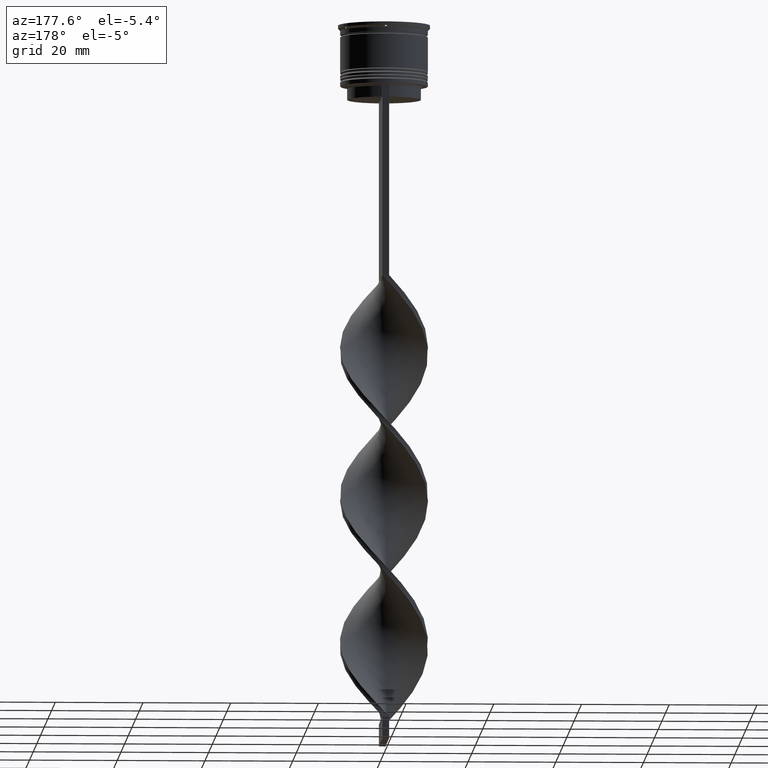
[diagram: clean part render]
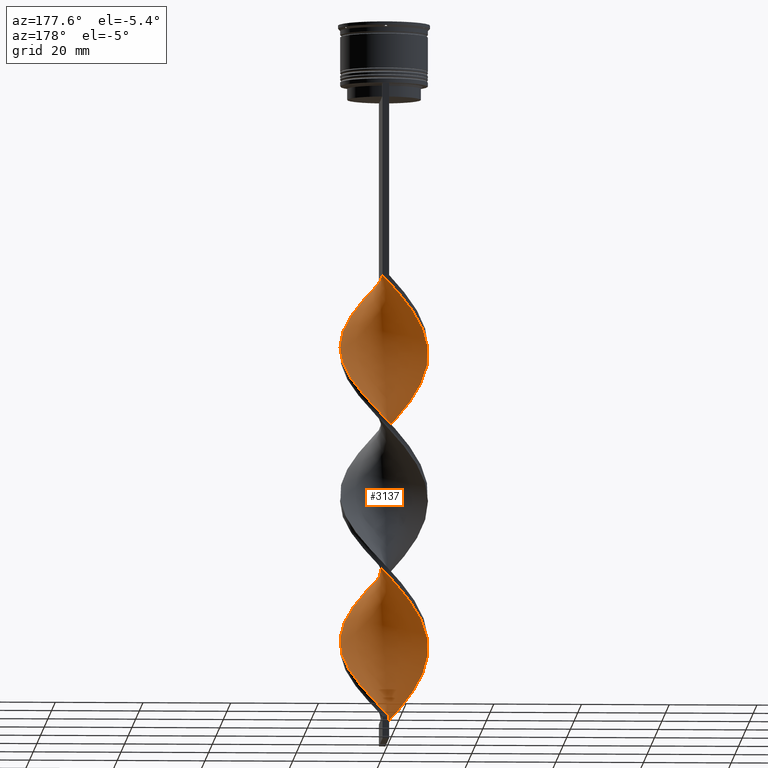
[diagram: same view with one face highlighted and labeled with its STEP entity id]
A machine part, auxiliary view. The second image highlights one B-rep face of the part: STEP entity #3137.
In plain terms, the highlighted face is a freeform B-spline surface patch.
Its self-contained STEP definition (entity closure, byte-faithful):
#8 = CARTESIAN_POINT ( 'NONE',  ( -8.578000064855064721, -5.300124413240419052, -81.56666666666664867 ) ) ;
#13 = CARTESIAN_POINT ( 'NONE',  ( 1.345506207627244155, 9.937409775451381932, -89.42222222222223138 ) ) ;
#24 = CARTESIAN_POINT ( 'NONE',  ( 7.933296209543087230, 6.133947444480531530, -116.3555555555555685 ) ) ;
#40 = CARTESIAN_POINT ( 'NONE',  ( 5.680638183180778178, 8.330891533339581656, -119.7222222222222143 ) ) ;
#49 = CARTESIAN_POINT ( 'NONE',  ( -7.691465658176951159, -6.520334342467823063, -115.2333333333333343 ) ) ;
#58 = CARTESIAN_POINT ( 'NONE',  ( -9.866822606231991699, 1.791176054202741952, -73.71111111111112280 ) ) ;
#62 = CARTESIAN_POINT ( 'NONE',  ( -0.3010423526567642116, 10.07882817644925666, -126.4555555555555628 ) ) ;
#77 = CARTESIAN_POINT ( 'NONE',  ( 7.691465658176943165, -6.520334342467822175, -101.7666666666666515 ) ) ;
#81 = CARTESIAN_POINT ( 'NONE',  ( 8.578000064855064721, 5.300124413240417276, -115.2333333333333343 ) ) ;
#94 = CARTESIAN_POINT ( 'NONE',  ( 9.866822606231989923, -1.791176054202747503, -107.3777777777777942 ) ) ;
#96 = CARTESIAN_POINT ( 'NONE',  ( 2.812727608727948247, -9.625542239224740726, -127.5777777777777828 ) ) ;
#116 = CARTESIAN_POINT ( 'NONE',  ( -10.02361530113348032, 0.2993932111503379012, -107.3777777777777942 ) ) ;
#134 = CARTESIAN_POINT ( 'NONE',  ( 6.167734941832655693, 7.976995022925434498, -83.81111111111111711 ) ) ;
#152 = CARTESIAN_POINT ( 'NONE',  ( -9.492508010833709875, 3.400837481082930491, -104.0111111111111200 ) ) ;
#167 = CARTESIAN_POINT ( 'NONE',  ( -1.801042352656767154, -9.921171823550741564, -90.54444444444445139 ) ) ;
#176 = CARTESIAN_POINT ( 'NONE',  ( 6.484615268705944402, -7.649331004530123934, -132.0666666666666629 ) ) ;
#191 = CARTESIAN_POINT ( 'NONE',  ( -5.680638183180776402, -8.330891533339583432, -86.05555555555557135 ) ) ;
#210 = CARTESIAN_POINT ( 'NONE',  ( 1.801042352656772927, 9.921171823550741564, -124.2111111111111370 ) ) ;
#221 = CARTESIAN_POINT ( 'NONE',  ( 9.742327908732750785, -2.376877556528111057, -138.8000000000000114 ) ) ;
#222 = LINE ( 'NONE', #591, #575 ) ;
#230 = CARTESIAN_POINT ( 'NONE',  ( -10.02361530113347143, -0.2993932111503279092, -143.2888888888889198 ) ) ;
#243 = CARTESIAN_POINT ( 'NONE',  ( 3.382207337526045965, -9.440507058732858781, -96.15555555555556566 ) ) ;
#251 = CARTESIAN_POINT ( 'NONE',  ( 9.866822606231998805, 1.791176054202738843, -75.95555555555554861 ) ) ;
#258 = CARTESIAN_POINT ( 'NONE',  ( -0.7500000000000014433, -9.999999999999998224, -159.0000000000000000 ) ) ;
#266 = CARTESIAN_POINT ( 'NONE',  ( 5.271089777143518340, -8.531008882968828644, -98.40000000000001990 ) ) ;
#272 = CARTESIAN_POINT ( 'NONE',  ( -9.278802417170330941, -3.803462330970838856, -111.8666666666666742 ) ) ;
#280 = CARTESIAN_POINT ( 'NONE',  ( 9.866822606231998805, 1.791176054202738843, -143.2888888888889198 ) ) ;
#284 = CARTESIAN_POINT ( 'NONE',  ( -4.374444612454386316, 9.085022743012224566, -63.61111111111111427 ) ) ;
#289 = CARTESIAN_POINT ( 'NONE',  ( 4.752525523989954870, -8.830402094119163436, -62.48888888888889426 ) ) ;
#291 = CARTESIAN_POINT ( 'NONE',  ( -3.382207337526049518, 9.440507058732857004, -129.8222222222222229 ) ) ;
#303 = CARTESIAN_POINT ( 'NONE',  ( -1.345506207627238604, 9.937409775451374827, -60.24444444444444713 ) ) ;
#318 = VERTEX_POINT ( 'NONE', #721 ) ;
#328 = CARTESIAN_POINT ( 'NONE',  ( -9.035254037844387298, -4.350480947161667444, -147.7777777777777715 ) ) ;
#333 = CARTESIAN_POINT ( 'NONE',  ( 6.484615268705944402, -7.649331004530123934, -64.73333333333333428 ) ) ;
#344 = CARTESIAN_POINT ( 'NONE',  ( 9.278802417170323835, -3.803462330970840188, -105.1333333333333400 ) ) ;
#350 = CARTESIAN_POINT ( 'NONE',  ( -0.3010423526567735375, -10.07882817644926376, -124.2111111111111370 ) ) ;
#357 = CARTESIAN_POINT ( 'NONE',  ( -1.345506207627238382, 9.937409775451374827, -60.24444444444444713 ) ) ;
#360 = CARTESIAN_POINT ( 'NONE',  ( -5.271089777143520116, 8.531008882968830420, -132.0666666666666629 ) ) ;
#379 = CARTESIAN_POINT ( 'NONE',  ( -6.167734941832649476, 7.976995022925432721, -65.85555555555555429 ) ) ;
#384 = CARTESIAN_POINT ( 'NONE',  ( 0.7500000000000001110, 9.999999999999998224, -125.3333333333333570 ) ) ;
#397 = CARTESIAN_POINT ( 'NONE',  ( 9.278802417170323835, -3.803462330970840632, -105.1333333333333400 ) ) ;
#401 = CARTESIAN_POINT ( 'NONE',  ( 10.05508279563516005, -0.7541312096726393577, -108.5000000000000000 ) ) ;
#418 = CARTESIAN_POINT ( 'NONE',  ( -9.678562416828828674, -2.828220898732835220, -110.7444444444444542 ) ) ;
#439 = CARTESIAN_POINT ( 'NONE',  ( -8.285254037844394404, -5.649519052838325450, -114.1111111111111285 ) ) ;
#455 = CARTESIAN_POINT ( 'NONE',  ( -4.752525523989951317, 8.830402094119165213, -96.15555555555556566 ) ) ;
#472 = CARTESIAN_POINT ( 'NONE',  ( -6.929600300004805646, -7.248664682696627892, -116.3555555555555685 ) ) ;
#476 = CARTESIAN_POINT ( 'NONE',  ( 10.05508279563516716, 0.7541312096726368042, -142.1666666666666856 ) ) ;
#486 = CARTESIAN_POINT ( 'NONE',  ( -8.285254037844383745, 5.649519052838329891, -69.22222222222222854 ) ) ;
#496 = CARTESIAN_POINT ( 'NONE',  ( -9.992147806631789919, 1.352917631973302282, -106.2555555555555742 ) ) ;
#524 = CARTESIAN_POINT ( 'NONE',  ( 0.3010423526567678754, 10.07882817644926376, -157.8777777777777942 ) ) ;
#532 = CARTESIAN_POINT ( 'NONE',  ( 9.992147806631784590, 1.352917631973288071, -110.7444444444444542 ) ) ;
#540 = CARTESIAN_POINT ( 'NONE',  ( 2.389970062597715827, 9.795991374453498324, -155.6333333333333258 ) ) ;
#545 = CARTESIAN_POINT ( 'NONE',  ( -9.866822606231991699, 1.791176054202741730, -73.71111111111112280 ) ) ;
#551 = CARTESIAN_POINT ( 'NONE',  ( -9.035254037844390851, 4.350480947161678102, -102.8888888888888857 ) ) ;
#553 = CARTESIAN_POINT ( 'NONE',  ( -9.492508010833709875, -3.400837481082919389, -146.6555555555555657 ) ) ;
#571 = CARTESIAN_POINT ( 'NONE',  ( -8.879042417511827878, 4.778703763208837607, -70.34444444444443434 ) ) ;
#575 = VECTOR ( 'NONE', #3627, 1000.000000000000000 ) ;
#580 = CARTESIAN_POINT ( 'NONE',  ( 9.035254037844389075, 4.350480947161663003, -114.1111111111111285 ) ) ;
#587 = ORIENTED_EDGE ( 'NONE', *, *, #828, .F. ) ;
#591 = CARTESIAN_POINT ( 'NONE',  ( 0.7500000000000001110, -10.00000000000000533, -58.00000000000000000 ) ) ;
#597 = CARTESIAN_POINT ( 'NONE',  ( 10.02361530113347854, -0.2993932111503322391, -73.71111111111112280 ) ) ;
#609 = CARTESIAN_POINT ( 'NONE',  ( -4.752525523989953982, -8.830402094119154555, -87.17777777777779136 ) ) ;
#615 = CARTESIAN_POINT ( 'NONE',  ( -9.492508010833711651, 3.400837481082930491, -104.0111111111111057 ) ) ;
#628 = CARTESIAN_POINT ( 'NONE',  ( 9.492508010833709875, 3.400837481082915836, -112.9888888888888943 ) ) ;
#636 = CARTESIAN_POINT ( 'NONE',  ( -3.824412864799130674, 9.329912654898736335, -95.03333333333331723 ) ) ;
#648 = CARTESIAN_POINT ( 'NONE',  ( 7.288592354231113291, 6.967770475720644896, -117.4777777777777885 ) ) ;
#654 = CARTESIAN_POINT ( 'NONE',  ( 0.7500000000000001110, -10.00000000000000533, -125.3333333333333570 ) ) ;
#666 = CARTESIAN_POINT ( 'NONE',  ( -2.812727608727951356, -9.625542239224735397, -156.7555555555555600 ) ) ;
#678 = CARTESIAN_POINT ( 'NONE',  ( 4.374444612454384540, -9.085022743012224566, -97.27777777777779988 ) ) ;
#681 = CARTESIAN_POINT ( 'NONE',  ( 5.680638183180777290, -8.330891533339590538, -63.61111111111111427 ) ) ;
#699 = CARTESIAN_POINT ( 'NONE',  ( -4.374444612454386316, 9.085022743012224566, -63.61111111111112137 ) ) ;
#704 = CARTESIAN_POINT ( 'NONE',  ( 6.484615268705942626, 7.649331004530116829, -118.6000000000000085 ) ) ;
#720 = CARTESIAN_POINT ( 'NONE',  ( -9.742327908732750785, 2.376877556528111946, -105.1333333333333400 ) ) ;
#721 = CARTESIAN_POINT ( 'NONE',  ( 0.7500000000000002220, 9.999999999999998224, -58.00000000000000000 ) ) ;
#736 = CARTESIAN_POINT ( 'NONE',  ( 0.7500000000000001110, -10.00000000000000533, -125.3333333333333570 ) ) ;
#757 = CARTESIAN_POINT ( 'NONE',  ( -3.824412864799130674, 9.329912654898738111, -95.03333333333331723 ) ) ;
#763 = CARTESIAN_POINT ( 'NONE',  ( 7.691465658176951159, 6.520334342467823951, -148.8999999999999773 ) ) ;
#777 = CARTESIAN_POINT ( 'NONE',  ( -2.389970062597717604, -9.795991374453498324, -121.9666666666666544 ) ) ;
#781 = CARTESIAN_POINT ( 'NONE',  ( 5.271089777143525446, 8.531008882968833973, -152.2666666666666799 ) ) ;
#784 = VERTEX_POINT ( 'NONE', #2822 ) ;
#790 = CARTESIAN_POINT ( 'NONE',  ( 0.3010423526567599928, -10.07882817644925844, -92.78888888888889142 ) ) ;
#796 = CARTESIAN_POINT ( 'NONE',  ( -2.812727608727946027, 9.625542239224740726, -93.91111111111111143 ) ) ;
#800 = CARTESIAN_POINT ( 'NONE',  ( 6.484615268705944402, -7.649331004530123934, -132.0666666666666629 ) ) ;
#824 = CARTESIAN_POINT ( 'NONE',  ( -2.812727608727951356, -9.625542239224735397, -89.42222222222223138 ) ) ;
#828 = EDGE_CURVE ( 'NONE', #318, #1967, #1308, .T. ) ;
#840 = CARTESIAN_POINT ( 'NONE',  ( -0.7499999999999988898, 10.00000000000000533, -159.0000000000000000 ) ) ;
#846 = CARTESIAN_POINT ( 'NONE',  ( -0.7500000000000013323, -9.999999999999998224, -91.66666666666667140 ) ) ;
#852 = CARTESIAN_POINT ( 'NONE',  ( 3.382207337526056179, 9.440507058732862333, -87.17777777777779136 ) ) ;
#854 = CARTESIAN_POINT ( 'NONE',  ( 5.680638183180778178, 8.330891533339583432, -119.7222222222222143 ) ) ;
#868 = CARTESIAN_POINT ( 'NONE',  ( -9.992147806631782814, -1.352917631973294510, -77.07777777777778283 ) ) ;
#874 = CARTESIAN_POINT ( 'NONE',  ( -10.05508279563516716, -0.7541312096726355829, -108.5000000000000000 ) ) ;
#876 = CARTESIAN_POINT ( 'NONE',  ( -5.271089777143520116, 8.531008882968830420, -132.0666666666666629 ) ) ;
#899 = CARTESIAN_POINT ( 'NONE',  ( 2.389970062597715827, 9.795991374453498324, -88.29999999999998295 ) ) ;
#908 = CARTESIAN_POINT ( 'NONE',  ( 8.879042417511834984, 4.778703763208838495, -146.6555555555555657 ) ) ;
#912 = CARTESIAN_POINT ( 'NONE',  ( -9.742327908732745456, -2.376877556528107949, -78.20000000000000284 ) ) ;
#919 = CARTESIAN_POINT ( 'NONE',  ( -5.680638183180775513, 8.330891533339592314, -97.27777777777779988 ) ) ;
#929 = CARTESIAN_POINT ( 'NONE',  ( 10.02361530113347143, 0.2993932111503245785, -109.6222222222222342 ) ) ;
#935 = CARTESIAN_POINT ( 'NONE',  ( -0.7499999999999988898, 10.00000000000000533, -91.66666666666667140 ) ) ;
#947 = CARTESIAN_POINT ( 'NONE',  ( -3.824412864799130674, -9.329912654898729230, -155.6333333333333258 ) ) ;
#954 = CARTESIAN_POINT ( 'NONE',  ( -6.929600300004805646, -7.248664682696627892, -116.3555555555555685 ) ) ;
#966 = CARTESIAN_POINT ( 'NONE',  ( 0.7500000000000001110, -10.00000000000000533, -58.00000000000000000 ) ) ;
#979 = CARTESIAN_POINT ( 'NONE',  ( -7.288592354231108850, -6.967770475720649337, -83.81111111111111711 ) ) ;
#983 = CARTESIAN_POINT ( 'NONE',  ( -7.933296209543087230, -6.133947444480532418, -150.0222222222222115 ) ) ;
#998 = CARTESIAN_POINT ( 'NONE',  ( 8.578000064855068274, -5.300124413240424381, -68.10000000000002274 ) ) ;
#1016 = CARTESIAN_POINT ( 'NONE',  ( -4.752525523989953982, -8.830402094119154555, -87.17777777777779136 ) ) ;
#1022 = CARTESIAN_POINT ( 'NONE',  ( 7.933296209543089006, -6.133947444480539524, -134.3111111111111313 ) ) ;
#1037 = CARTESIAN_POINT ( 'NONE',  ( 9.742327908732750785, -2.376877556528111057, -138.8000000000000114 ) ) ;
#1050 = CARTESIAN_POINT ( 'NONE',  ( 2.389970062597715827, 9.795991374453498324, -88.29999999999998295 ) ) ;
#1054 = CARTESIAN_POINT ( 'NONE',  ( 9.492508010833715204, -3.400837481082924718, -137.6777777777777487 ) ) ;
#1071 = CARTESIAN_POINT ( 'NONE',  ( -0.7499999999999988898, 10.00000000000000533, -159.0000000000000000 ) ) ;
#1073 = CARTESIAN_POINT ( 'NONE',  ( -7.691465658176951159, -6.520334342467823063, -115.2333333333333343 ) ) ;
#1078 = CARTESIAN_POINT ( 'NONE',  ( 8.879042417511834984, 4.778703763208838495, -146.6555555555555657 ) ) ;
#1093 = CARTESIAN_POINT ( 'NONE',  ( 10.02361530113347854, -0.2993932111503322391, -73.71111111111112280 ) ) ;
#1126 = CARTESIAN_POINT ( 'NONE',  ( -5.680638183180776402, -8.330891533339583432, -153.3888888888889142 ) ) ;
#1140 = CARTESIAN_POINT ( 'NONE',  ( 6.929600300004804758, 7.248664682696628780, -150.0222222222222115 ) ) ;
#1143 = CARTESIAN_POINT ( 'NONE',  ( -5.271089777143520116, 8.531008882968830420, -64.73333333333333428 ) ) ;
#1151 = CARTESIAN_POINT ( 'NONE',  ( -4.752525523989953982, -8.830402094119154555, -154.5111111111111200 ) ) ;
#1169 = CARTESIAN_POINT ( 'NONE',  ( -10.02361530113348032, 0.2993932111503379012, -107.3777777777777942 ) ) ;
#1171 = CARTESIAN_POINT ( 'NONE',  ( -9.678562416828818016, 2.828220898732843214, -139.9222222222222172 ) ) ;
#1187 = CARTESIAN_POINT ( 'NONE',  ( 7.691465658176951159, 6.520334342467823951, -81.56666666666666288 ) ) ;
#1189 = CARTESIAN_POINT ( 'NONE',  ( -9.992147806631782814, -1.352917631973294288, -144.4111111111111256 ) ) ;
#1205 = CARTESIAN_POINT ( 'NONE',  ( -3.382207337526049962, 9.440507058732857004, -62.48888888888889426 ) ) ;
#1212 = CARTESIAN_POINT ( 'NONE',  ( -7.288592354231109738, 6.967770475720659107, -99.52222222222223991 ) ) ;
#1213 = CARTESIAN_POINT ( 'NONE',  ( -0.3010423526567641006, 10.07882817644925666, -126.4555555555555770 ) ) ;
#1226 = CARTESIAN_POINT ( 'NONE',  ( 8.285254037844381969, -5.649519052838332556, -102.8888888888888857 ) ) ;
#1241 = CARTESIAN_POINT ( 'NONE',  ( -6.484615268705941737, -7.649331004530116829, -152.2666666666666799 ) ) ;
#1248 = CARTESIAN_POINT ( 'NONE',  ( 2.812727608727948247, -9.625542239224740726, -60.24444444444444713 ) ) ;
#1260 = CARTESIAN_POINT ( 'NONE',  ( -2.389970062597713163, 9.795991374453491218, -128.6999999999999886 ) ) ;
#1277 = CARTESIAN_POINT ( 'NONE',  ( -10.05508279563516005, 0.7541312096726382475, -74.83333333333332860 ) ) ;
#1281 = CARTESIAN_POINT ( 'NONE',  ( -3.382207337526049962, 9.440507058732857004, -129.8222222222222229 ) ) ;
#1293 = CARTESIAN_POINT ( 'NONE',  ( -2.812727608727951356, -9.625542239224735397, -89.42222222222223138 ) ) ;
#1296 = CARTESIAN_POINT ( 'NONE',  ( 8.879042417511824326, -4.778703763208842936, -104.0111111111111200 ) ) ;
#1308 =( BOUNDED_CURVE ( )  B_SPLINE_CURVE ( 2, ( #1383, #2515, #357, #2615, #2892, #699, #3123, #379, #3696, #2501, #486, #2207, #1575, #2786, #58, #1277, #1707, #1918, #2591, #2485, #1986, #2916, #2298, #979, #2190, #191, #1016, #3805, #1293, #167, #3505, #790, #3396, #1897, #1407, #678, #3104, #1600, #2807, #77, #3710, #3417, #397, #1617, #94, #1310, #2278, #532, #3889, #3230, #580, #3550, #3253, #2363, #3843, #854, #1494, #1751, #2657, #210, #3930, #1213, #3908, #3591, #291, #3570, #876, #2425, #2684, #3021, #1512, #1771, #2113, #1171, #3317, #2383, #230, #1189, #1819, #553, #2937, #2981, #2703, #1449, #2404, #1126, #1151, #2722, #1799, #3614, #3004 ),
 .UNSPECIFIED., .F., .T. ) 
 B_SPLINE_CURVE_WITH_KNOTS ( ( 3, 2, 2, 2, 2, 2, 2, 2, 2, 2, 2, 2, 2, 2, 2, 2, 2, 2, 2, 2, 2, 2, 2, 2, 2, 2, 2, 2, 2, 2, 2, 2, 2, 2, 2, 2, 2, 2, 2, 2, 2, 2, 2, 2, 2, 3 ),
 ( 0.000000000000000000, 0.01666666666666666644, 0.03333333333333333287, 0.05000000000000000971, 0.06666666666666666574, 0.08333333333333332871, 0.1000000000000000194, 0.1166666666666666546, 0.1333333333333333315, 0.1499999999999999944, 0.1666666666666666574, 0.1833333333333333204, 0.2000000000000000389, 0.2166666666666666741, 0.2333333333333333093, 0.2500000000000000000, 0.2666666666666666630, 0.2833333333333333259, 0.2999999999999999889, 0.3166666666666666519, 0.3333333333333333148, 0.3499999999999999223, 0.3666666666666666408, 0.3833333333333333592, 0.4000000000000000777, 0.4166666666666666852, 0.4333333333333333481, 0.4500000000000000111, 0.4666666666666666186, 0.4833333333333333370, 0.5000000000000000000, 0.5166666666666667185, 0.5333333333333333259, 0.5500000000000000444, 0.5666666666666666519, 0.5833333333333333703, 0.5999999999999999778, 0.6166666666666666963, 0.6333333333333333037, 0.6500000000000000222, 0.6666666666666666297, 0.6833333333333332371, 0.6999999999999998446, 0.7166666666666666741, 0.7333333333333332815, 0.7500000000000000000 ),
 .UNSPECIFIED. ) 
 CURVE ( )  GEOMETRIC_REPRESENTATION_ITEM ( )  RATIONAL_B_SPLINE_CURVE ( ( 1.000000000000000000, 0.9945218953682732899, 1.000000000000000000, 0.9945218953682732899, 1.000000000000000000, 0.9945218953682732899, 1.000000000000000000, 0.9945218953682732899, 1.000000000000000000, 0.9945218953682732899, 1.000000000000000000, 0.9945218953682732899, 1.000000000000000000, 0.9945218953682732899, 1.000000000000000000, 0.9945218953682732899, 1.000000000000000000, 0.9945218953682732899, 1.000000000000000000, 0.9945218953682732899, 1.000000000000000000, 0.9945218953682732899, 1.000000000000000000, 0.9945218953682732899, 1.000000000000000000, 0.9945218953682732899, 1.000000000000000000, 0.9945218953682732899, 1.000000000000000000, 0.9945218953682732899, 1.000000000000000000, 0.9945218953682732899, 1.000000000000000000, 0.9945218953682732899, 1.000000000000000000, 0.9945218953682732899, 1.000000000000000000, 0.9945218953682732899, 1.000000000000000000, 0.9945218953682732899, 1.000000000000000000, 0.9945218953682732899, 1.000000000000000000, 0.9945218953682732899, 1.000000000000000000, 0.9945218953682732899, 1.000000000000000000, 0.9945218953682732899, 1.000000000000000000, 0.9945218953682732899, 1.000000000000000000, 0.9945218953682732899, 1.000000000000000000, 0.9945218953682732899, 1.000000000000000000, 0.9945218953682732899, 1.000000000000000000, 0.9945218953682732899, 1.000000000000000000, 0.9945218953682732899, 1.000000000000000000, 0.9945218953682732899, 1.000000000000000000, 0.9945218953682732899, 1.000000000000000000, 0.9945218953682732899, 1.000000000000000000, 0.9945218953682732899, 1.000000000000000000, 0.9945218953682732899, 1.000000000000000000, 0.9945218953682732899, 1.000000000000000000, 0.9945218953682732899, 1.000000000000000000, 0.9945218953682732899, 1.000000000000000000, 0.9945218953682732899, 1.000000000000000000, 0.9945218953682732899, 1.000000000000000000, 0.9945218953682732899, 1.000000000000000000, 0.9945218953682732899, 1.000000000000000000, 0.9945218953682732899, 1.000000000000000000, 0.9945218953682732899, 1.000000000000000000, 0.9945218953682732899, 1.000000000000000000 ) ) 
 REPRESENTATION_ITEM ( '' )  );
#1310 = CARTESIAN_POINT ( 'NONE',  ( 10.05508279563516005, -0.7541312096726393577, -108.5000000000000000 ) ) ;
#1315 = CARTESIAN_POINT ( 'NONE',  ( 5.680638183180777290, -8.330891533339590538, -130.9444444444444287 ) ) ;
#1334 = CARTESIAN_POINT ( 'NONE',  ( 7.691465658176951159, 6.520334342467823951, -81.56666666666664867 ) ) ;
#1351 = CARTESIAN_POINT ( 'NONE',  ( 9.866822606231998805, 1.791176054202738843, -75.95555555555554861 ) ) ;
#1367 = CARTESIAN_POINT ( 'NONE',  ( -10.05508279563516716, -0.7541312096726356939, -108.5000000000000000 ) ) ;
#1383 = CARTESIAN_POINT ( 'NONE',  ( 0.7500000000000002220, 9.999999999999998224, -58.00000000000000000 ) ) ;
#1393 =( BOUNDED_CURVE ( )  B_SPLINE_CURVE ( 2, ( #3315, #1769, #1248, #1534, #289, #3568, #333, #2129, #3649, #1833, #2381, #3589, #2742, #2979, #597, #1817, #251, #3929, #1797, #3632, #1472, #1187, #2402, #3349, #2701, #3331, #852, #899, #13, #3293, #935, #1511, #2146, #636, #2111, #919, #2424, #1212, #1856, #3271, #551, #615, #2682, #3888, #1169, #874, #2087, #3002, #272, #2456, #2775, #49, #954, #3669, #2165, #1875, #3076, #3373, #1569, #350, #654, #3515, #2013, #2308, #2949, #2291, #800, #2645, #1399, #1743, #3834, #1054, #221, #2606, #3856, #476, #1663, #3218, #2868, #1078, #1980, #763, #1140, #3498, #781, #3183, #1696, #1997, #2579, #524, #3815 ),
 .UNSPECIFIED., .F., .T. ) 
 B_SPLINE_CURVE_WITH_KNOTS ( ( 3, 2, 2, 2, 2, 2, 2, 2, 2, 2, 2, 2, 2, 2, 2, 2, 2, 2, 2, 2, 2, 2, 2, 2, 2, 2, 2, 2, 2, 2, 2, 2, 2, 2, 2, 2, 2, 2, 2, 2, 2, 2, 2, 2, 2, 3 ),
 ( 0.000000000000000000, 0.01666666666666666644, 0.03333333333333333287, 0.05000000000000000971, 0.06666666666666666574, 0.08333333333333332871, 0.1000000000000000194, 0.1166666666666666546, 0.1333333333333333315, 0.1499999999999999944, 0.1666666666666666574, 0.1833333333333333204, 0.2000000000000000389, 0.2166666666666666741, 0.2333333333333333093, 0.2500000000000000000, 0.2666666666666666630, 0.2833333333333333259, 0.2999999999999999889, 0.3166666666666666519, 0.3333333333333333148, 0.3499999999999999223, 0.3666666666666666408, 0.3833333333333333592, 0.4000000000000000777, 0.4166666666666666852, 0.4333333333333333481, 0.4500000000000000111, 0.4666666666666666186, 0.4833333333333333370, 0.5000000000000000000, 0.5166666666666667185, 0.5333333333333333259, 0.5500000000000000444, 0.5666666666666666519, 0.5833333333333333703, 0.5999999999999999778, 0.6166666666666666963, 0.6333333333333333037, 0.6500000000000000222, 0.6666666666666666297, 0.6833333333333332371, 0.6999999999999998446, 0.7166666666666666741, 0.7333333333333332815, 0.7500000000000000000 ),
 .UNSPECIFIED. ) 
 CURVE ( )  GEOMETRIC_REPRESENTATION_ITEM ( )  RATIONAL_B_SPLINE_CURVE ( ( 1.000000000000000000, 0.9945218953682732899, 1.000000000000000000, 0.9945218953682732899, 1.000000000000000000, 0.9945218953682732899, 1.000000000000000000, 0.9945218953682732899, 1.000000000000000000, 0.9945218953682732899, 1.000000000000000000, 0.9945218953682732899, 1.000000000000000000, 0.9945218953682732899, 1.000000000000000000, 0.9945218953682732899, 1.000000000000000000, 0.9945218953682732899, 1.000000000000000000, 0.9945218953682732899, 1.000000000000000000, 0.9945218953682732899, 1.000000000000000000, 0.9945218953682732899, 1.000000000000000000, 0.9945218953682732899, 1.000000000000000000, 0.9945218953682732899, 1.000000000000000000, 0.9945218953682732899, 1.000000000000000000, 0.9945218953682732899, 1.000000000000000000, 0.9945218953682732899, 1.000000000000000000, 0.9945218953682732899, 1.000000000000000000, 0.9945218953682732899, 1.000000000000000000, 0.9945218953682732899, 1.000000000000000000, 0.9945218953682732899, 1.000000000000000000, 0.9945218953682732899, 1.000000000000000000, 0.9945218953682732899, 1.000000000000000000, 0.9945218953682732899, 1.000000000000000000, 0.9945218953682732899, 1.000000000000000000, 0.9945218953682732899, 1.000000000000000000, 0.9945218953682732899, 1.000000000000000000, 0.9945218953682732899, 1.000000000000000000, 0.9945218953682732899, 1.000000000000000000, 0.9945218953682732899, 1.000000000000000000, 0.9945218953682732899, 1.000000000000000000, 0.9945218953682732899, 1.000000000000000000, 0.9945218953682732899, 1.000000000000000000, 0.9945218953682732899, 1.000000000000000000, 0.9945218953682732899, 1.000000000000000000, 0.9945218953682732899, 1.000000000000000000, 0.9945218953682732899, 1.000000000000000000, 0.9945218953682732899, 1.000000000000000000, 0.9945218953682732899, 1.000000000000000000, 0.9945218953682732899, 1.000000000000000000, 0.9945218953682732899, 1.000000000000000000, 0.9945218953682732899, 1.000000000000000000, 0.9945218953682732899, 1.000000000000000000, 0.9945218953682732899, 1.000000000000000000, 0.9945218953682732899, 1.000000000000000000 ) ) 
 REPRESENTATION_ITEM ( '' )  );
#1394 = CARTESIAN_POINT ( 'NONE',  ( -3.382207337526060620, -9.440507058732860557, -120.8444444444444485 ) ) ;
#1399 = CARTESIAN_POINT ( 'NONE',  ( 7.933296209543089006, -6.133947444480539524, -134.3111111111111313 ) ) ;
#1407 = CARTESIAN_POINT ( 'NONE',  ( 3.382207337526045965, -9.440507058732858781, -96.15555555555556566 ) ) ;
#1415 = CARTESIAN_POINT ( 'NONE',  ( 9.278802417170330941, 3.803462330970840632, -145.5333333333333599 ) ) ;
#1441 = CARTESIAN_POINT ( 'NONE',  ( -10.02361530113347143, -0.2993932111503280202, -75.95555555555554861 ) ) ;
#1449 = CARTESIAN_POINT ( 'NONE',  ( -7.288592354231108850, -6.967770475720649337, -151.1444444444444457 ) ) ;
#1465 = CARTESIAN_POINT ( 'NONE',  ( 4.374444612454384540, -9.085022743012224566, -97.27777777777778567 ) ) ;
#1472 = CARTESIAN_POINT ( 'NONE',  ( 8.285254037844390851, 5.649519052838329891, -80.44444444444445708 ) ) ;
#1486 = CARTESIAN_POINT ( 'NONE',  ( -7.288592354231108850, -6.967770475720650225, -83.81111111111111711 ) ) ;
#1494 = CARTESIAN_POINT ( 'NONE',  ( 4.752525523989959311, 8.830402094119152778, -120.8444444444444485 ) ) ;
#1505 = CARTESIAN_POINT ( 'NONE',  ( -6.929600300004796765, 7.248664682696627892, -66.97777777777777430 ) ) ;
#1511 = CARTESIAN_POINT ( 'NONE',  ( -1.801042352656761381, 9.921171823550750446, -92.78888888888889142 ) ) ;
#1512 = CARTESIAN_POINT ( 'NONE',  ( -8.285254037844383745, 5.649519052838329891, -136.5555555555555713 ) ) ;
#1534 = CARTESIAN_POINT ( 'NONE',  ( 3.824412864799132006, -9.329912654898734559, -61.36666666666666003 ) ) ;
#1539 = CARTESIAN_POINT ( 'NONE',  ( -0.7500000000000014433, -9.999999999999998224, -159.0000000000000000 ) ) ;
#1547 = CARTESIAN_POINT ( 'NONE',  ( -8.578000064855064721, -5.300124413240419052, -148.8999999999999488 ) ) ;
#1562 = CARTESIAN_POINT ( 'NONE',  ( 6.484615268705944402, -7.649331004530123934, -64.73333333333333428 ) ) ;
#1569 = CARTESIAN_POINT ( 'NONE',  ( -1.345506207627245487, -9.937409775451381932, -123.0888888888888886 ) ) ;
#1575 = CARTESIAN_POINT ( 'NONE',  ( -9.278802417170323835, 3.803462330970839744, -71.46666666666668277 ) ) ;
#1581 = CARTESIAN_POINT ( 'NONE',  ( -8.879042417511827878, 4.778703763208837607, -137.6777777777777487 ) ) ;
#1600 = CARTESIAN_POINT ( 'NONE',  ( 6.167734941832646811, -7.976995022925432721, -99.52222222222223991 ) ) ;
#1603 = CARTESIAN_POINT ( 'NONE',  ( -6.929600300004796765, 7.248664682696627892, -134.3111111111111313 ) ) ;
#1617 = CARTESIAN_POINT ( 'NONE',  ( 9.678562416828818016, -2.828220898732846322, -106.2555555555555742 ) ) ;
#1620 = CARTESIAN_POINT ( 'NONE',  ( 1.801042352656772705, 9.921171823550739788, -124.2111111111111370 ) ) ;
#1639 = CARTESIAN_POINT ( 'NONE',  ( -8.879042417511836760, -4.778703763208835831, -112.9888888888888943 ) ) ;
#1659 = CARTESIAN_POINT ( 'NONE',  ( 10.02361530113347854, -0.2993932111503322391, -141.0444444444444514 ) ) ;
#1663 = CARTESIAN_POINT ( 'NONE',  ( 9.866822606231998805, 1.791176054202738843, -143.2888888888889198 ) ) ;
#1674 = CARTESIAN_POINT ( 'NONE',  ( -6.484615268705943514, 7.649331004530123934, -98.40000000000001990 ) ) ;
#1692 = CARTESIAN_POINT ( 'NONE',  ( 1.801042352656765155, -9.921171823550746893, -126.4555555555555628 ) ) ;
#1696 = CARTESIAN_POINT ( 'NONE',  ( 3.382207337526056179, 9.440507058732862333, -154.5111111111111200 ) ) ;
#1707 = CARTESIAN_POINT ( 'NONE',  ( -10.02361530113347143, -0.2993932111503279092, -75.95555555555554861 ) ) ;
#1718 = CARTESIAN_POINT ( 'NONE',  ( -5.271089777143526334, -8.531008882968833973, -118.6000000000000085 ) ) ;
#1743 = CARTESIAN_POINT ( 'NONE',  ( 8.578000064855070050, -5.300124413240424381, -135.4333333333333371 ) ) ;
#1744 = CARTESIAN_POINT ( 'NONE',  ( -7.691465658176945830, 6.520334342467821287, -68.10000000000002274 ) ) ;
#1751 = CARTESIAN_POINT ( 'NONE',  ( 3.824412864799132450, 9.329912654898727453, -121.9666666666666544 ) ) ;
#1758 = CARTESIAN_POINT ( 'NONE',  ( 1.345506207627244155, 9.937409775451381932, -156.7555555555555600 ) ) ;
#1763 = CARTESIAN_POINT ( 'NONE',  ( -5.680638183180776402, -8.330891533339581656, -86.05555555555557135 ) ) ;
#1769 = CARTESIAN_POINT ( 'NONE',  ( 1.801042352656765155, -9.921171823550748670, -59.12222222222222712 ) ) ;
#1771 = CARTESIAN_POINT ( 'NONE',  ( -8.879042417511827878, 4.778703763208838495, -137.6777777777777487 ) ) ;
#1793 = EDGE_CURVE ( 'NONE', #1967, #2638, #3574, .T. ) ;
#1797 = CARTESIAN_POINT ( 'NONE',  ( 9.278802417170330941, 3.803462330970840632, -78.20000000000000284 ) ) ;
#1799 = CARTESIAN_POINT ( 'NONE',  ( -2.812727608727951356, -9.625542239224735397, -156.7555555555555600 ) ) ;
#1817 = CARTESIAN_POINT ( 'NONE',  ( 10.05508279563516716, 0.7541312096726368042, -74.83333333333332860 ) ) ;
#1819 = CARTESIAN_POINT ( 'NONE',  ( -9.742327908732745456, -2.376877556528107505, -145.5333333333333599 ) ) ;
#1833 = CARTESIAN_POINT ( 'NONE',  ( 8.578000064855070050, -5.300124413240424381, -68.10000000000000853 ) ) ;
#1848 = CARTESIAN_POINT ( 'NONE',  ( 4.752525523989958423, 8.830402094119152778, -120.8444444444444485 ) ) ;
#1856 = CARTESIAN_POINT ( 'NONE',  ( -7.933296209543089006, 6.133947444480543076, -100.6444444444444599 ) ) ;
#1869 = CARTESIAN_POINT ( 'NONE',  ( 3.824412864799132450, 9.329912654898729230, -121.9666666666666544 ) ) ;
#1875 = CARTESIAN_POINT ( 'NONE',  ( -4.374444612454396974, -9.085022743012226343, -119.7222222222222143 ) ) ;
#1885 = CARTESIAN_POINT ( 'NONE',  ( 4.752525523989954870, -8.830402094119163436, -62.48888888888889426 ) ) ;
#1897 = CARTESIAN_POINT ( 'NONE',  ( 2.389970062597711831, -9.795991374453492995, -95.03333333333331723 ) ) ;
#1901 = CARTESIAN_POINT ( 'NONE',  ( 7.288592354231111514, -6.967770475720657330, -65.85555555555555429 ) ) ;
#1918 = CARTESIAN_POINT ( 'NONE',  ( -9.992147806631782814, -1.352917631973294288, -77.07777777777778283 ) ) ;
#1921 = CARTESIAN_POINT ( 'NONE',  ( -1.345506207627238604, 9.937409775451374827, -127.5777777777777828 ) ) ;
#1937 = CARTESIAN_POINT ( 'NONE',  ( 8.578000064855068274, -5.300124413240424381, -135.4333333333333371 ) ) ;
#1954 = CARTESIAN_POINT ( 'NONE',  ( 9.742327908732750785, -2.376877556528111057, -71.46666666666668277 ) ) ;
#1967 = VERTEX_POINT ( 'NONE', #1539 ) ;
#1976 = CARTESIAN_POINT ( 'NONE',  ( -0.7499999999999988898, 10.00000000000000533, -91.66666666666667140 ) ) ;
#1980 = CARTESIAN_POINT ( 'NONE',  ( 8.285254037844390851, 5.649519052838329891, -147.7777777777777715 ) ) ;
#1986 = CARTESIAN_POINT ( 'NONE',  ( -9.035254037844387298, -4.350480947161667444, -80.44444444444445708 ) ) ;
#1992 = CARTESIAN_POINT ( 'NONE',  ( 9.278802417170330941, 3.803462330970840632, -78.20000000000000284 ) ) ;
#1997 = CARTESIAN_POINT ( 'NONE',  ( 2.389970062597715827, 9.795991374453498324, -155.6333333333333542 ) ) ;
#2009 = CARTESIAN_POINT ( 'NONE',  ( -7.288592354231109738, 6.967770475720659107, -99.52222222222223991 ) ) ;
#2013 = CARTESIAN_POINT ( 'NONE',  ( 2.812727608727948247, -9.625542239224740726, -127.5777777777777828 ) ) ;
#2041 = CARTESIAN_POINT ( 'NONE',  ( -1.801042352656766932, -9.921171823550739788, -90.54444444444445139 ) ) ;
#2079 = FACE_OUTER_BOUND ( 'NONE', #3556, .T. ) ;
#2087 = CARTESIAN_POINT ( 'NONE',  ( -9.866822606231998805, -1.791176054202735513, -109.6222222222222342 ) ) ;
#2111 = CARTESIAN_POINT ( 'NONE',  ( -4.752525523989951317, 8.830402094119165213, -96.15555555555556566 ) ) ;
#2113 = CARTESIAN_POINT ( 'NONE',  ( -9.278802417170323835, 3.803462330970839744, -138.8000000000000114 ) ) ;
#2118 = CARTESIAN_POINT ( 'NONE',  ( 4.374444612454393422, 9.085022743012228119, -153.3888888888889142 ) ) ;
#2129 = CARTESIAN_POINT ( 'NONE',  ( 7.288592354231111514, -6.967770475720657330, -65.85555555555555429 ) ) ;
#2140 = CARTESIAN_POINT ( 'NONE',  ( 9.035254037844389075, 4.350480947161663003, -114.1111111111111285 ) ) ;
#2146 = CARTESIAN_POINT ( 'NONE',  ( -2.812727608727946027, 9.625542239224740726, -93.91111111111111143 ) ) ;
#2159 = CARTESIAN_POINT ( 'NONE',  ( 1.801042352656765155, -9.921171823550746893, -59.12222222222222712 ) ) ;
#2165 = CARTESIAN_POINT ( 'NONE',  ( -5.271089777143526334, -8.531008882968833973, -118.6000000000000085 ) ) ;
#2178 = CARTESIAN_POINT ( 'NONE',  ( -9.678562416828818016, 2.828220898732842770, -139.9222222222222172 ) ) ;
#2190 = CARTESIAN_POINT ( 'NONE',  ( -6.484615268705941737, -7.649331004530116829, -84.93333333333333712 ) ) ;
#2193 = CARTESIAN_POINT ( 'NONE',  ( 6.929600300004795876, -7.248664682696628780, -100.6444444444444599 ) ) ;
#2207 = CARTESIAN_POINT ( 'NONE',  ( -8.879042417511827878, 4.778703763208838495, -70.34444444444444855 ) ) ;
#2212 = CARTESIAN_POINT ( 'NONE',  ( 9.035254037844390851, -4.350480947161673662, -69.22222222222222854 ) ) ;
#2233 = CARTESIAN_POINT ( 'NONE',  ( -8.578000064855068274, 5.300124413240425270, -101.7666666666666515 ) ) ;
#2248 = CARTESIAN_POINT ( 'NONE',  ( 9.992147806631789919, -1.352917631973299173, -139.9222222222222172 ) ) ;
#2265 = CARTESIAN_POINT ( 'NONE',  ( 3.382207337526056179, 9.440507058732862333, -87.17777777777779136 ) ) ;
#2278 = CARTESIAN_POINT ( 'NONE',  ( 10.02361530113347143, 0.2993932111503244675, -109.6222222222222342 ) ) ;
#2287 = CARTESIAN_POINT ( 'NONE',  ( -6.167734941832660134, -7.976995022925430945, -117.4777777777777885 ) ) ;
#2291 = CARTESIAN_POINT ( 'NONE',  ( 5.680638183180777290, -8.330891533339590538, -130.9444444444444571 ) ) ;
#2298 = CARTESIAN_POINT ( 'NONE',  ( -7.933296209543087230, -6.133947444480532418, -82.68888888888889710 ) ) ;
#2304 = CARTESIAN_POINT ( 'NONE',  ( 9.992147806631789919, -1.352917631973299173, -72.58888888888890278 ) ) ;
#2308 = CARTESIAN_POINT ( 'NONE',  ( 3.824412864799132006, -9.329912654898734559, -128.7000000000000171 ) ) ;
#2354 = CARTESIAN_POINT ( 'NONE',  ( -6.167734941832649476, 7.976995022925432721, -65.85555555555555429 ) ) ;
#2363 = CARTESIAN_POINT ( 'NONE',  ( 7.288592354231113291, 6.967770475720644896, -117.4777777777777885 ) ) ;
#2381 = CARTESIAN_POINT ( 'NONE',  ( 9.035254037844390851, -4.350480947161673662, -69.22222222222222854 ) ) ;
#2383 = CARTESIAN_POINT ( 'NONE',  ( -10.05508279563516005, 0.7541312096726382475, -142.1666666666666856 ) ) ;
#2392 = CARTESIAN_POINT ( 'NONE',  ( 5.271089777143525446, 8.531008882968833973, -152.2666666666666799 ) ) ;
#2402 = CARTESIAN_POINT ( 'NONE',  ( 6.929600300004804758, 7.248664682696628780, -82.68888888888889710 ) ) ;
#2404 = CARTESIAN_POINT ( 'NONE',  ( -6.484615268705941737, -7.649331004530116829, -152.2666666666666799 ) ) ;
#2419 = CARTESIAN_POINT ( 'NONE',  ( -6.484615268705941737, -7.649331004530116829, -84.93333333333333712 ) ) ;
#2424 = CARTESIAN_POINT ( 'NONE',  ( -6.484615268705943514, 7.649331004530123934, -98.40000000000001990 ) ) ;
#2425 = CARTESIAN_POINT ( 'NONE',  ( -6.167734941832649476, 7.976995022925432721, -133.1888888888889255 ) ) ;
#2435 = CARTESIAN_POINT ( 'NONE',  ( -8.285254037844383745, 5.649519052838329891, -136.5555555555555713 ) ) ;
#2449 = ORIENTED_EDGE ( 'NONE', *, *, #3759, .T. ) ;
#2450 = CARTESIAN_POINT ( 'NONE',  ( -5.680638183180776402, -8.330891533339581656, -153.3888888888889142 ) ) ;
#2456 = CARTESIAN_POINT ( 'NONE',  ( -8.879042417511836760, -4.778703763208834943, -112.9888888888888943 ) ) ;
#2469 = CARTESIAN_POINT ( 'NONE',  ( -9.992147806631782814, -1.352917631973294510, -144.4111111111111541 ) ) ;
#2485 = CARTESIAN_POINT ( 'NONE',  ( -9.492508010833709875, -3.400837481082919389, -79.32222222222222285 ) ) ;
#2488 = CARTESIAN_POINT ( 'NONE',  ( -10.05508279563516005, 0.7541312096726381364, -142.1666666666666856 ) ) ;
#2501 = CARTESIAN_POINT ( 'NONE',  ( -7.691465658176945830, 6.520334342467821287, -68.10000000000000853 ) ) ;
#2503 = CARTESIAN_POINT ( 'NONE',  ( 9.992147806631784590, 1.352917631973288515, -110.7444444444444542 ) ) ;
#2515 = CARTESIAN_POINT ( 'NONE',  ( -0.3010423526567641006, 10.07882817644925666, -59.12222222222222712 ) ) ;
#2521 = CARTESIAN_POINT ( 'NONE',  ( 10.05508279563516716, 0.7541312096726368042, -74.83333333333334281 ) ) ;
#2542 = CARTESIAN_POINT ( 'NONE',  ( 9.492508010833713428, -3.400837481082924718, -137.6777777777777487 ) ) ;
#2557 = CARTESIAN_POINT ( 'NONE',  ( 9.492508010833713428, -3.400837481082924718, -70.34444444444443434 ) ) ;
#2572 = CARTESIAN_POINT ( 'NONE',  ( -0.7500000000000005551, -3.333333333333330373, -159.0000000000000000 ) ) ;
#2574 = CARTESIAN_POINT ( 'NONE',  ( -9.866822606231998805, -1.791176054202735513, -109.6222222222222342 ) ) ;
#2579 = CARTESIAN_POINT ( 'NONE',  ( 1.345506207627244155, 9.937409775451381932, -156.7555555555555600 ) ) ;
#2591 = CARTESIAN_POINT ( 'NONE',  ( -9.742327908732745456, -2.376877556528107505, -78.20000000000000284 ) ) ;
#2602 = CARTESIAN_POINT ( 'NONE',  ( 8.879042417511834984, 4.778703763208838495, -79.32222222222222285 ) ) ;
#2606 = CARTESIAN_POINT ( 'NONE',  ( 9.992147806631788143, -1.352917631973299173, -139.9222222222222172 ) ) ;
#2615 = CARTESIAN_POINT ( 'NONE',  ( -2.389970062597713163, 9.795991374453491218, -61.36666666666666003 ) ) ;
#2622 = CARTESIAN_POINT ( 'NONE',  ( 7.691465658176951159, 6.520334342467823951, -148.8999999999999488 ) ) ;
#2638 = VERTEX_POINT ( 'NONE', #3237 ) ;
#2645 = CARTESIAN_POINT ( 'NONE',  ( 7.288592354231111514, -6.967770475720657330, -133.1888888888889255 ) ) ;
#2657 = CARTESIAN_POINT ( 'NONE',  ( 2.812727608727952688, 9.625542239224735397, -123.0888888888888886 ) ) ;
#2675 = CARTESIAN_POINT ( 'NONE',  ( -0.3010423526567642116, 10.07882817644925666, -59.12222222222222712 ) ) ;
#2682 = CARTESIAN_POINT ( 'NONE',  ( -9.742327908732750785, 2.376877556528111946, -105.1333333333333400 ) ) ;
#2684 = CARTESIAN_POINT ( 'NONE',  ( -6.929600300004796765, 7.248664682696627892, -134.3111111111111313 ) ) ;
#2696 = CARTESIAN_POINT ( 'NONE',  ( -9.678562416828818016, 2.828220898732842770, -72.58888888888890278 ) ) ;
#2697 = ORIENTED_EDGE ( 'NONE', *, *, #1793, .F. ) ;
#2701 = CARTESIAN_POINT ( 'NONE',  ( 5.271089777143525446, 8.531008882968833973, -84.93333333333333712 ) ) ;
#2703 = CARTESIAN_POINT ( 'NONE',  ( -7.933296209543087230, -6.133947444480532418, -150.0222222222222115 ) ) ;
#2709 = CARTESIAN_POINT ( 'NONE',  ( 0.3010423526567679309, 10.07882817644926376, -157.8777777777777942 ) ) ;
#2713 = CARTESIAN_POINT ( 'NONE',  ( -10.05508279563516005, 0.7541312096726381364, -74.83333333333334281 ) ) ;
#2722 = CARTESIAN_POINT ( 'NONE',  ( -3.824412864799130674, -9.329912654898727453, -155.6333333333333542 ) ) ;
#2742 = CARTESIAN_POINT ( 'NONE',  ( 9.742327908732750785, -2.376877556528111057, -71.46666666666668277 ) ) ;
#2752 = CARTESIAN_POINT ( 'NONE',  ( -7.691465658176945830, 6.520334342467821287, -135.4333333333333371 ) ) ;
#2767 = CARTESIAN_POINT ( 'NONE',  ( 9.678562416828818016, -2.828220898732845878, -106.2555555555555742 ) ) ;
#2775 = CARTESIAN_POINT ( 'NONE',  ( -8.285254037844394404, -5.649519052838325450, -114.1111111111111285 ) ) ;
#2786 = CARTESIAN_POINT ( 'NONE',  ( -9.678562416828818016, 2.828220898732843214, -72.58888888888890278 ) ) ;
#2790 = CARTESIAN_POINT ( 'NONE',  ( -9.492508010833708099, -3.400837481082919389, -146.6555555555555657 ) ) ;
#2807 = CARTESIAN_POINT ( 'NONE',  ( 6.929600300004795876, -7.248664682696629669, -100.6444444444444599 ) ) ;
#2809 = CARTESIAN_POINT ( 'NONE',  ( 7.933296209543089006, -6.133947444480539524, -66.97777777777777430 ) ) ;
#2822 = CARTESIAN_POINT ( 'NONE',  ( 0.7500000000000001110, -10.00000000000000533, -58.00000000000000000 ) ) ;
#2824 = CARTESIAN_POINT ( 'NONE',  ( -4.374444612454386316, 9.085022743012224566, -130.9444444444444287 ) ) ;
#2845 = CARTESIAN_POINT ( 'NONE',  ( 9.678562416828826898, 2.828220898732840549, -77.07777777777778283 ) ) ;
#2863 = CARTESIAN_POINT ( 'NONE',  ( 8.285254037844390851, 5.649519052838329891, -80.44444444444445708 ) ) ;
#2868 = CARTESIAN_POINT ( 'NONE',  ( 9.278802417170330941, 3.803462330970840632, -145.5333333333333599 ) ) ;
#2878 = CARTESIAN_POINT ( 'NONE',  ( -9.035254037844390851, 4.350480947161678102, -102.8888888888888857 ) ) ;
#2892 = CARTESIAN_POINT ( 'NONE',  ( -3.382207337526049518, 9.440507058732857004, -62.48888888888889426 ) ) ;
#2901 = CARTESIAN_POINT ( 'NONE',  ( 3.824412864799132006, -9.329912654898736335, -128.6999999999999886 ) ) ;
#2916 = CARTESIAN_POINT ( 'NONE',  ( -8.578000064855064721, -5.300124413240419052, -81.56666666666666288 ) ) ;
#2924 = CARTESIAN_POINT ( 'NONE',  ( 8.285254037844390851, 5.649519052838329891, -147.7777777777777715 ) ) ;
#2937 = CARTESIAN_POINT ( 'NONE',  ( -9.035254037844387298, -4.350480947161667444, -147.7777777777777715 ) ) ;
#2949 = CARTESIAN_POINT ( 'NONE',  ( 4.752525523989954870, -8.830402094119163436, -129.8222222222222229 ) ) ;
#2950 = CARTESIAN_POINT ( 'NONE',  ( -9.278802417170323835, 3.803462330970839300, -71.46666666666668277 ) ) ;
#2966 = CARTESIAN_POINT ( 'NONE',  ( 6.167734941832655693, 7.976995022925434498, -151.1444444444444457 ) ) ;
#2972 = CARTESIAN_POINT ( 'NONE',  ( 2.389970062597711831, -9.795991374453492995, -95.03333333333331723 ) ) ;
#2979 = CARTESIAN_POINT ( 'NONE',  ( 9.992147806631788143, -1.352917631973299173, -72.58888888888890278 ) ) ;
#2981 = CARTESIAN_POINT ( 'NONE',  ( -8.578000064855064721, -5.300124413240419052, -148.8999999999999773 ) ) ;
#2989 = CARTESIAN_POINT ( 'NONE',  ( 3.382207337526056179, 9.440507058732862333, -154.5111111111111200 ) ) ;
#3002 = CARTESIAN_POINT ( 'NONE',  ( -9.678562416828830450, -2.828220898732835220, -110.7444444444444542 ) ) ;
#3004 = CARTESIAN_POINT ( 'NONE',  ( -0.7500000000000014433, -9.999999999999998224, -159.0000000000000000 ) ) ;
#3009 = CARTESIAN_POINT ( 'NONE',  ( 6.929600300004804758, 7.248664682696628780, -150.0222222222222115 ) ) ;
#3013 = CARTESIAN_POINT ( 'NONE',  ( -2.389970062597713163, 9.795991374453491218, -61.36666666666666003 ) ) ;
#3021 = CARTESIAN_POINT ( 'NONE',  ( -7.691465658176945830, 6.520334342467821287, -135.4333333333333371 ) ) ;
#3054 = CARTESIAN_POINT ( 'NONE',  ( -10.02361530113347143, -0.2993932111503280202, -143.2888888888889198 ) ) ;
#3069 = EDGE_CURVE ( 'NONE', #784, #318, #222, .T. ) ;
#3070 = CARTESIAN_POINT ( 'NONE',  ( 2.812727608727948247, -9.625542239224740726, -60.24444444444444713 ) ) ;
#3076 = CARTESIAN_POINT ( 'NONE',  ( -3.382207337526060620, -9.440507058732860557, -120.8444444444444485 ) ) ;
#3087 = CARTESIAN_POINT ( 'NONE',  ( 9.866822606231989923, -1.791176054202747281, -107.3777777777777942 ) ) ;
#3104 = CARTESIAN_POINT ( 'NONE',  ( 5.271089777143518340, -8.531008882968830420, -98.40000000000001990 ) ) ;
#3107 = CARTESIAN_POINT ( 'NONE',  ( -7.288592354231108850, -6.967770475720650225, -151.1444444444444457 ) ) ;
#3123 = CARTESIAN_POINT ( 'NONE',  ( -5.271089777143520116, 8.531008882968830420, -64.73333333333333428 ) ) ;
#3125 = CARTESIAN_POINT ( 'NONE',  ( 7.691465658176944054, -6.520334342467822175, -101.7666666666666515 ) ) ;
#3137 = ADVANCED_FACE ( 'NONE', ( #2079 ), #3597, .T. ) ;
#3142 = CARTESIAN_POINT ( 'NONE',  ( 9.035254037844390851, -4.350480947161673662, -136.5555555555555713 ) ) ;
#3147 = ORIENTED_EDGE ( 'NONE', *, *, #3069, .F. ) ;
#3158 = CARTESIAN_POINT ( 'NONE',  ( 1.345506207627244155, 9.937409775451381932, -89.42222222222223138 ) ) ;
#3179 = CARTESIAN_POINT ( 'NONE',  ( -5.680638183180775513, 8.330891533339592314, -97.27777777777778567 ) ) ;
#3183 = CARTESIAN_POINT ( 'NONE',  ( 4.374444612454394310, 9.085022743012228119, -153.3888888888889142 ) ) ;
#3197 = CARTESIAN_POINT ( 'NONE',  ( -0.3010423526567735375, -10.07882817644926376, -124.2111111111111370 ) ) ;
#3214 = CARTESIAN_POINT ( 'NONE',  ( 6.929600300004804758, 7.248664682696628780, -82.68888888888889710 ) ) ;
#3218 = CARTESIAN_POINT ( 'NONE',  ( 9.678562416828828674, 2.828220898732840993, -144.4111111111111256 ) ) ;
#3230 = CARTESIAN_POINT ( 'NONE',  ( 9.492508010833711651, 3.400837481082915392, -112.9888888888888943 ) ) ;
#3237 = CARTESIAN_POINT ( 'NONE',  ( -0.7499999999999988898, 10.00000000000000533, -159.0000000000000000 ) ) ;
#3245 = CARTESIAN_POINT ( 'NONE',  ( 0.3010423526567601038, -10.07882817644925844, -92.78888888888889142 ) ) ;
#3253 = CARTESIAN_POINT ( 'NONE',  ( 7.933296209543087230, 6.133947444480531530, -116.3555555555555685 ) ) ;
#3261 = CARTESIAN_POINT ( 'NONE',  ( 9.678562416828826898, 2.828220898732840549, -144.4111111111111541 ) ) ;
#3266 = CARTESIAN_POINT ( 'NONE',  ( 1.345506207627235939, -9.937409775451374827, -93.91111111111111143 ) ) ;
#3271 = CARTESIAN_POINT ( 'NONE',  ( -8.578000064855068274, 5.300124413240425270, -101.7666666666666515 ) ) ;
#3286 = CARTESIAN_POINT ( 'NONE',  ( -8.285254037844383745, 5.649519052838329891, -69.22222222222222854 ) ) ;
#3293 = CARTESIAN_POINT ( 'NONE',  ( 0.3010423526567678754, 10.07882817644926376, -90.54444444444445139 ) ) ;
#3315 = CARTESIAN_POINT ( 'NONE',  ( 0.7500000000000001110, -10.00000000000000533, -58.00000000000000000 ) ) ;
#3317 = CARTESIAN_POINT ( 'NONE',  ( -9.866822606231991699, 1.791176054202741952, -141.0444444444444514 ) ) ;
#3325 = CARTESIAN_POINT ( 'NONE',  ( -7.933296209543087230, -6.133947444480532418, -82.68888888888889710 ) ) ;
#3331 = CARTESIAN_POINT ( 'NONE',  ( 4.374444612454394310, 9.085022743012228119, -86.05555555555557135 ) ) ;
#3342 = CARTESIAN_POINT ( 'NONE',  ( -9.866822606231991699, 1.791176054202741730, -141.0444444444444514 ) ) ;
#3349 = CARTESIAN_POINT ( 'NONE',  ( 6.167734941832656581, 7.976995022925434498, -83.81111111111111711 ) ) ;
#3366 = CARTESIAN_POINT ( 'NONE',  ( 3.824412864799132006, -9.329912654898736335, -61.36666666666666003 ) ) ;
#3373 = CARTESIAN_POINT ( 'NONE',  ( -2.389970062597717604, -9.795991374453498324, -121.9666666666666544 ) ) ;
#3385 = CARTESIAN_POINT ( 'NONE',  ( -4.752525523989953982, -8.830402094119154555, -154.5111111111111200 ) ) ;
#3396 = CARTESIAN_POINT ( 'NONE',  ( 1.345506207627235717, -9.937409775451374827, -93.91111111111111143 ) ) ;
#3400 = CARTESIAN_POINT ( 'NONE',  ( 2.812727608727952688, 9.625542239224735397, -123.0888888888888886 ) ) ;
#3417 = CARTESIAN_POINT ( 'NONE',  ( 8.879042417511824326, -4.778703763208842936, -104.0111111111111057 ) ) ;
#3420 = CARTESIAN_POINT ( 'NONE',  ( -6.167734941832649476, 7.976995022925432721, -133.1888888888889255 ) ) ;
#3440 = CARTESIAN_POINT ( 'NONE',  ( 4.752525523989954870, -8.830402094119163436, -129.8222222222222229 ) ) ;
#3454 = CARTESIAN_POINT ( 'NONE',  ( -7.933296209543089006, 6.133947444480543076, -100.6444444444444599 ) ) ;
#3473 = CARTESIAN_POINT ( 'NONE',  ( -1.801042352656761159, 9.921171823550748670, -92.78888888888889142 ) ) ;
#3493 = CARTESIAN_POINT ( 'NONE',  ( -4.374444612454396086, -9.085022743012226343, -119.7222222222222143 ) ) ;
#3498 = CARTESIAN_POINT ( 'NONE',  ( 6.167734941832656581, 7.976995022925434498, -151.1444444444444457 ) ) ;
#3505 = CARTESIAN_POINT ( 'NONE',  ( -0.7500000000000014433, -9.999999999999998224, -91.66666666666667140 ) ) ;
#3510 = CARTESIAN_POINT ( 'NONE',  ( 0.3010423526567679309, 10.07882817644926376, -90.54444444444445139 ) ) ;
#3515 = CARTESIAN_POINT ( 'NONE',  ( 1.801042352656765155, -9.921171823550748670, -126.4555555555555770 ) ) ;
#3539 = CARTESIAN_POINT ( 'NONE',  ( -3.824412864799130674, -9.329912654898729230, -88.29999999999998295 ) ) ;
#3550 = CARTESIAN_POINT ( 'NONE',  ( 8.578000064855064721, 5.300124413240417276, -115.2333333333333343 ) ) ;
#3556 = EDGE_LOOP ( 'NONE', ( #3147, #2449, #2697, #587 ) ) ;
#3558 = CARTESIAN_POINT ( 'NONE',  ( 10.05508279563516716, 0.7541312096726368042, -142.1666666666666856 ) ) ;
#3563 = CARTESIAN_POINT ( 'NONE',  ( -9.035254037844387298, -4.350480947161667444, -80.44444444444445708 ) ) ;
#3568 = CARTESIAN_POINT ( 'NONE',  ( 5.680638183180777290, -8.330891533339590538, -63.61111111111112137 ) ) ;
#3570 = CARTESIAN_POINT ( 'NONE',  ( -4.374444612454386316, 9.085022743012224566, -130.9444444444444571 ) ) ;
#3574 = B_SPLINE_CURVE_WITH_KNOTS ( 'NONE', 3,
 ( #258, #2572, #3786, #1071 ),
 .UNSPECIFIED., .F., .F.,
 ( 4, 4 ),
 ( 0.000000000000000000, 1.000000000000000000 ),
 .UNSPECIFIED. ) ;
#3589 = CARTESIAN_POINT ( 'NONE',  ( 9.492508010833715204, -3.400837481082924718, -70.34444444444444855 ) ) ;
#3591 = CARTESIAN_POINT ( 'NONE',  ( -2.389970062597713163, 9.795991374453491218, -128.7000000000000171 ) ) ;
#3597 =( BOUNDED_SURFACE ( )  B_SPLINE_SURFACE ( 1, 2, ( 
 ( #3858, #2675, #303, #3013, #1205, #284, #1143, #2354, #1505, #1744, #3286, #571, #2950, #2696, #545, #2713, #1441, #868, #912, #3921, #3563, #8, #3325, #1486, #2419, #1763, #609, #3539, #824, #2041, #846, #3245, #3266, #2972, #243, #1465, #266, #3901, #2193, #3125, #1226, #1296, #344, #2767, #3087, #401, #929, #2503, #3714, #628, #2140, #81, #24, #648, #704, #40, #1848, #1869, #3400, #1620, #384, #62, #1921, #1260, #1281, #2824, #360, #3420, #1603, #2752, #2435, #1581, #3642, #2178, #3342, #2488, #3054, #2469, #3661, #2790, #328, #1547, #983, #3107, #1241, #2450, #3385, #947, #666, #3683, #3698 ),
 ( #966, #2159, #3070, #3366, #1885, #681, #1562, #1901, #2809, #998, #2212, #2557, #1954, #2304, #1093, #2521, #1351, #2845, #1992, #2602, #2863, #1334, #3214, #134, #3767, #3751, #2265, #1050, #3158, #3510, #1976, #3473, #796, #757, #455, #3179, #1674, #2009, #3454, #2233, #2878, #152, #720, #496, #116, #1367, #2574, #418, #3789, #1639, #439, #1073, #472, #2287, #1718, #3493, #1394, #777, #3811, #3197, #736, #1692, #96, #2901, #3440, #1315, #176, #3735, #1022, #1937, #3142, #2542, #1037, #2248, #1659, #3558, #280, #3261, #1415, #908, #2924, #2622, #3009, #2966, #2392, #2118, #2989, #540, #1758, #2709, #840 ) ),
 .UNSPECIFIED., .F., .F., .F. ) 
 B_SPLINE_SURFACE_WITH_KNOTS ( ( 2, 2 ),
 ( 3, 2, 2, 2, 2, 2, 2, 2, 2, 2, 2, 2, 2, 2, 2, 2, 2, 2, 2, 2, 2, 2, 2, 2, 2, 2, 2, 2, 2, 2, 2, 2, 2, 2, 2, 2, 2, 2, 2, 2, 2, 2, 2, 2, 2, 3 ),
 ( 0.000000000000000000, 1.000000000000000000 ),
 ( 0.000000000000000000, 0.01666666666666666644, 0.03333333333333333287, 0.05000000000000000278, 0.06666666666666666574, 0.08333333333333332871, 0.1000000000000000056, 0.1166666666666666685, 0.1333333333333333315, 0.1499999999999999944, 0.1666666666666666574, 0.1833333333333333204, 0.2000000000000000111, 0.2166666666666666741, 0.2333333333333333370, 0.2500000000000000000, 0.2666666666666666630, 0.2833333333333333259, 0.2999999999999999889, 0.3166666666666666519, 0.3333333333333333148, 0.3499999999999999778, 0.3666666666666666408, 0.3833333333333333592, 0.4000000000000000222, 0.4166666666666666852, 0.4333333333333333481, 0.4500000000000000111, 0.4666666666666666741, 0.4833333333333333370, 0.5000000000000000000, 0.5166666666666667185, 0.5333333333333333259, 0.5500000000000000444, 0.5666666666666666519, 0.5833333333333333703, 0.5999999999999999778, 0.6166666666666666963, 0.6333333333333333037, 0.6500000000000000222, 0.6666666666666666297, 0.6833333333333333481, 0.6999999999999999556, 0.7166666666666666741, 0.7333333333333332815, 0.7500000000000000000 ),
 .UNSPECIFIED. ) 
 GEOMETRIC_REPRESENTATION_ITEM ( )  RATIONAL_B_SPLINE_SURFACE ( (
 ( 1.000000000000000000, 0.9945218953682732899, 1.000000000000000000, 0.9945218953682732899, 1.000000000000000000, 0.9945218953682732899, 1.000000000000000000, 0.9945218953682732899, 1.000000000000000000, 0.9945218953682732899, 1.000000000000000000, 0.9945218953682732899, 1.000000000000000000, 0.9945218953682732899, 1.000000000000000000, 0.9945218953682732899, 1.000000000000000000, 0.9945218953682732899, 1.000000000000000000, 0.9945218953682732899, 1.000000000000000000, 0.9945218953682732899, 1.000000000000000000, 0.9945218953682732899, 1.000000000000000000, 0.9945218953682732899, 1.000000000000000000, 0.9945218953682732899, 1.000000000000000000, 0.9945218953682732899, 1.000000000000000000, 0.9945218953682732899, 1.000000000000000000, 0.9945218953682732899, 1.000000000000000000, 0.9945218953682732899, 1.000000000000000000, 0.9945218953682732899, 1.000000000000000000, 0.9945218953682732899, 1.000000000000000000, 0.9945218953682732899, 1.000000000000000000, 0.9945218953682732899, 1.000000000000000000, 0.9945218953682732899, 1.000000000000000000, 0.9945218953682732899, 1.000000000000000000, 0.9945218953682732899, 1.000000000000000000, 0.9945218953682732899, 1.000000000000000000, 0.9945218953682732899, 1.000000000000000000, 0.9945218953682732899, 1.000000000000000000, 0.9945218953682732899, 1.000000000000000000, 0.9945218953682732899, 1.000000000000000000, 0.9945218953682732899, 1.000000000000000000, 0.9945218953682732899, 1.000000000000000000, 0.9945218953682732899, 1.000000000000000000, 0.9945218953682732899, 1.000000000000000000, 0.9945218953682732899, 1.000000000000000000, 0.9945218953682732899, 1.000000000000000000, 0.9945218953682732899, 1.000000000000000000, 0.9945218953682732899, 1.000000000000000000, 0.9945218953682732899, 1.000000000000000000, 0.9945218953682732899, 1.000000000000000000, 0.9945218953682732899, 1.000000000000000000, 0.9945218953682732899, 1.000000000000000000, 0.9945218953682732899, 1.000000000000000000, 0.9945218953682732899, 1.000000000000000000, 0.9945218953682732899, 1.000000000000000000),
 ( 1.000000000000000000, 0.9945218953682732899, 1.000000000000000000, 0.9945218953682732899, 1.000000000000000000, 0.9945218953682732899, 1.000000000000000000, 0.9945218953682732899, 1.000000000000000000, 0.9945218953682732899, 1.000000000000000000, 0.9945218953682732899, 1.000000000000000000, 0.9945218953682732899, 1.000000000000000000, 0.9945218953682732899, 1.000000000000000000, 0.9945218953682732899, 1.000000000000000000, 0.9945218953682732899, 1.000000000000000000, 0.9945218953682732899, 1.000000000000000000, 0.9945218953682732899, 1.000000000000000000, 0.9945218953682732899, 1.000000000000000000, 0.9945218953682732899, 1.000000000000000000, 0.9945218953682732899, 1.000000000000000000, 0.9945218953682732899, 1.000000000000000000, 0.9945218953682732899, 1.000000000000000000, 0.9945218953682732899, 1.000000000000000000, 0.9945218953682732899, 1.000000000000000000, 0.9945218953682732899, 1.000000000000000000, 0.9945218953682732899, 1.000000000000000000, 0.9945218953682732899, 1.000000000000000000, 0.9945218953682732899, 1.000000000000000000, 0.9945218953682732899, 1.000000000000000000, 0.9945218953682732899, 1.000000000000000000, 0.9945218953682732899, 1.000000000000000000, 0.9945218953682732899, 1.000000000000000000, 0.9945218953682732899, 1.000000000000000000, 0.9945218953682732899, 1.000000000000000000, 0.9945218953682732899, 1.000000000000000000, 0.9945218953682732899, 1.000000000000000000, 0.9945218953682732899, 1.000000000000000000, 0.9945218953682732899, 1.000000000000000000, 0.9945218953682732899, 1.000000000000000000, 0.9945218953682732899, 1.000000000000000000, 0.9945218953682732899, 1.000000000000000000, 0.9945218953682732899, 1.000000000000000000, 0.9945218953682732899, 1.000000000000000000, 0.9945218953682732899, 1.000000000000000000, 0.9945218953682732899, 1.000000000000000000, 0.9945218953682732899, 1.000000000000000000, 0.9945218953682732899, 1.000000000000000000, 0.9945218953682732899, 1.000000000000000000, 0.9945218953682732899, 1.000000000000000000, 0.9945218953682732899, 1.000000000000000000) ) ) 
 REPRESENTATION_ITEM ( '' )  SURFACE ( )  );
#3614 = CARTESIAN_POINT ( 'NONE',  ( -1.801042352656767154, -9.921171823550741564, -157.8777777777777942 ) ) ;
#3627 = DIRECTION ( 'NONE',  ( 0.000000000000000000, 1.000000000000000000, 0.000000000000000000 ) ) ;
#3632 = CARTESIAN_POINT ( 'NONE',  ( 8.879042417511834984, 4.778703763208838495, -79.32222222222222285 ) ) ;
#3642 = CARTESIAN_POINT ( 'NONE',  ( -9.278802417170323835, 3.803462330970839300, -138.8000000000000114 ) ) ;
#3649 = CARTESIAN_POINT ( 'NONE',  ( 7.933296209543089006, -6.133947444480539524, -66.97777777777777430 ) ) ;
#3661 = CARTESIAN_POINT ( 'NONE',  ( -9.742327908732745456, -2.376877556528107949, -145.5333333333333599 ) ) ;
#3669 = CARTESIAN_POINT ( 'NONE',  ( -6.167734941832661022, -7.976995022925430945, -117.4777777777777885 ) ) ;
#3683 = CARTESIAN_POINT ( 'NONE',  ( -1.801042352656766932, -9.921171823550739788, -157.8777777777777942 ) ) ;
#3696 = CARTESIAN_POINT ( 'NONE',  ( -6.929600300004796765, 7.248664682696627892, -66.97777777777777430 ) ) ;
#3698 = CARTESIAN_POINT ( 'NONE',  ( -0.7500000000000013323, -9.999999999999998224, -159.0000000000000000 ) ) ;
#3710 = CARTESIAN_POINT ( 'NONE',  ( 8.285254037844381969, -5.649519052838333444, -102.8888888888888857 ) ) ;
#3714 = CARTESIAN_POINT ( 'NONE',  ( 9.742327908732745456, 2.376877556528106172, -111.8666666666666742 ) ) ;
#3735 = CARTESIAN_POINT ( 'NONE',  ( 7.288592354231111514, -6.967770475720657330, -133.1888888888889255 ) ) ;
#3751 = CARTESIAN_POINT ( 'NONE',  ( 4.374444612454393422, 9.085022743012228119, -86.05555555555557135 ) ) ;
#3759 = EDGE_CURVE ( 'NONE', #784, #2638, #1393, .T. ) ;
#3767 = CARTESIAN_POINT ( 'NONE',  ( 5.271089777143525446, 8.531008882968833973, -84.93333333333333712 ) ) ;
#3786 = CARTESIAN_POINT ( 'NONE',  ( -0.7499999999999997780, 3.333333333333337478, -159.0000000000000000 ) ) ;
#3789 = CARTESIAN_POINT ( 'NONE',  ( -9.278802417170330941, -3.803462330970838856, -111.8666666666666742 ) ) ;
#3805 = CARTESIAN_POINT ( 'NONE',  ( -3.824412864799130674, -9.329912654898727453, -88.29999999999998295 ) ) ;
#3811 = CARTESIAN_POINT ( 'NONE',  ( -1.345506207627245487, -9.937409775451381932, -123.0888888888888886 ) ) ;
#3815 = CARTESIAN_POINT ( 'NONE',  ( -0.7499999999999988898, 10.00000000000000533, -159.0000000000000000 ) ) ;
#3834 = CARTESIAN_POINT ( 'NONE',  ( 9.035254037844390851, -4.350480947161673662, -136.5555555555555713 ) ) ;
#3843 = CARTESIAN_POINT ( 'NONE',  ( 6.484615268705942626, 7.649331004530116829, -118.6000000000000085 ) ) ;
#3856 = CARTESIAN_POINT ( 'NONE',  ( 10.02361530113347854, -0.2993932111503322391, -141.0444444444444514 ) ) ;
#3858 = CARTESIAN_POINT ( 'NONE',  ( 0.7500000000000001110, 9.999999999999998224, -58.00000000000000000 ) ) ;
#3888 = CARTESIAN_POINT ( 'NONE',  ( -9.992147806631788143, 1.352917631973302282, -106.2555555555555742 ) ) ;
#3889 = CARTESIAN_POINT ( 'NONE',  ( 9.742327908732745456, 2.376877556528106172, -111.8666666666666742 ) ) ;
#3901 = CARTESIAN_POINT ( 'NONE',  ( 6.167734941832646811, -7.976995022925432721, -99.52222222222223991 ) ) ;
#3908 = CARTESIAN_POINT ( 'NONE',  ( -1.345506207627238382, 9.937409775451374827, -127.5777777777777828 ) ) ;
#3921 = CARTESIAN_POINT ( 'NONE',  ( -9.492508010833708099, -3.400837481082919389, -79.32222222222222285 ) ) ;
#3929 = CARTESIAN_POINT ( 'NONE',  ( 9.678562416828828674, 2.828220898732840993, -77.07777777777778283 ) ) ;
#3930 = CARTESIAN_POINT ( 'NONE',  ( 0.7500000000000002220, 9.999999999999998224, -125.3333333333333570 ) ) ;